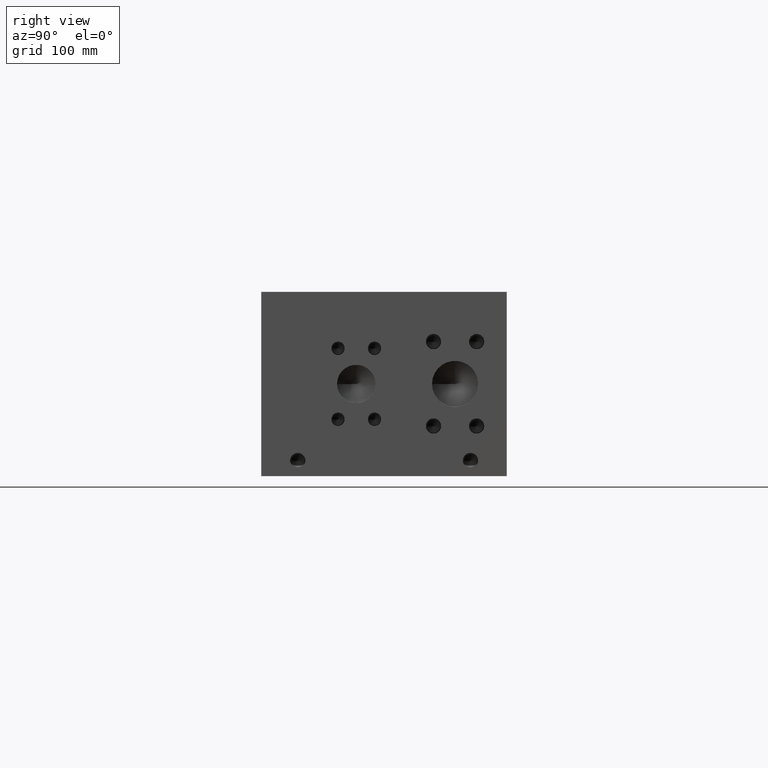
[diagram: clean part render]
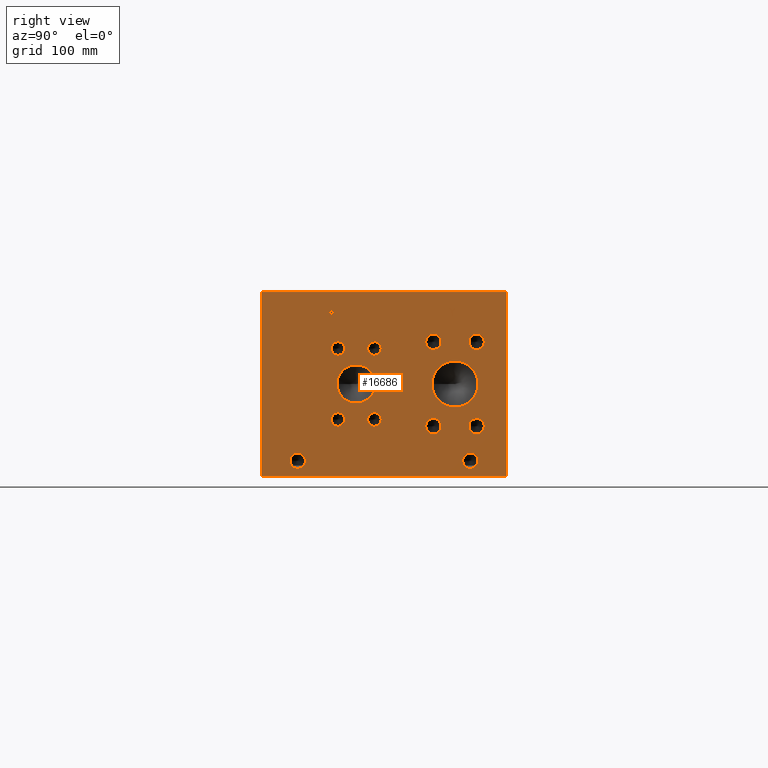
[diagram: same view with one face highlighted and labeled with its STEP entity id]
A machine part, right view. The second image highlights one B-rep face of the part: STEP entity #16686.
In plain terms, the highlighted planar face has unit normal (1, 0, 0).
Its self-contained STEP definition (entity closure, byte-faithful):
#355=CIRCLE('',#17505,6.35);
#356=CIRCLE('',#17506,6.35);
#357=CIRCLE('',#17507,6.35);
#358=CIRCLE('',#17508,6.35);
#359=CIRCLE('',#17509,15.875);
#360=CIRCLE('',#17510,15.875);
#361=CIRCLE('',#17511,5.5626);
#362=CIRCLE('',#17512,5.5626);
#363=CIRCLE('',#17513,5.5626);
#364=CIRCLE('',#17514,5.5626);
#365=CIRCLE('',#17515,5.5626);
#366=CIRCLE('',#17516,5.5626);
#367=CIRCLE('',#17517,5.5626);
#368=CIRCLE('',#17518,5.5626);
#369=CIRCLE('',#17519,19.05);
#370=CIRCLE('',#17520,19.05);
#371=CIRCLE('',#17521,6.35);
#372=CIRCLE('',#17522,6.35);
#373=CIRCLE('',#17523,6.35);
#374=CIRCLE('',#17524,6.35);
#375=CIRCLE('',#17525,6.35);
#376=CIRCLE('',#17526,6.35);
#377=CIRCLE('',#17527,6.35);
#378=CIRCLE('',#17528,6.35);
#986=FACE_BOUND('',#3058,.T.);
#987=FACE_BOUND('',#3059,.T.);
#988=FACE_BOUND('',#3060,.T.);
#989=FACE_BOUND('',#3061,.T.);
#990=FACE_BOUND('',#3062,.T.);
#991=FACE_BOUND('',#3063,.T.);
#992=FACE_BOUND('',#3064,.T.);
#993=FACE_BOUND('',#3065,.T.);
#994=FACE_BOUND('',#3066,.T.);
#995=FACE_BOUND('',#3067,.T.);
#996=FACE_BOUND('',#3068,.T.);
#997=FACE_BOUND('',#3069,.T.);
#998=FACE_BOUND('',#3070,.T.);
#999=FACE_BOUND('',#3071,.T.);
#1482=PLANE('',#17504);
#2087=FACE_OUTER_BOUND('',#3057,.T.);
#3057=EDGE_LOOP('',(#13587,#13588,#13589,#13590));
#3058=EDGE_LOOP('',(#13591,#13592,#13593,#13594,#13595,#13596,#13597,#13598,
#13599));
#3059=EDGE_LOOP('',(#13600,#13601));
#3060=EDGE_LOOP('',(#13602,#13603));
#3061=EDGE_LOOP('',(#13604,#13605));
#3062=EDGE_LOOP('',(#13606,#13607));
#3063=EDGE_LOOP('',(#13608,#13609));
#3064=EDGE_LOOP('',(#13610,#13611));
#3065=EDGE_LOOP('',(#13612,#13613));
#3066=EDGE_LOOP('',(#13614,#13615));
#3067=EDGE_LOOP('',(#13616,#13617));
#3068=EDGE_LOOP('',(#13618,#13619));
#3069=EDGE_LOOP('',(#13620,#13621));
#3070=EDGE_LOOP('',(#13622,#13623));
#3071=EDGE_LOOP('',(#13624,#13625,#13626,#13627,#13628,#13629,#13630,#13631,
#13632));
#3616=LINE('',#22874,#5042);
#4596=LINE('',#27189,#6022);
#4600=LINE('',#27197,#6026);
#4603=LINE('',#27203,#6029);
#4606=LINE('',#27209,#6032);
#4609=LINE('',#27215,#6035);
#4612=LINE('',#27221,#6038);
#4615=LINE('',#27227,#6041);
#4618=LINE('',#27233,#6044);
#4621=LINE('',#27238,#6047);
#4639=LINE('',#27378,#6065);
#4642=LINE('',#27384,#6068);
#4645=LINE('',#27390,#6071);
#4648=LINE('',#27396,#6074);
#4651=LINE('',#27402,#6077);
#4655=LINE('',#27444,#6081);
#4656=LINE('',#27446,#6082);
#4657=LINE('',#27447,#6083);
#5042=VECTOR('',#18494,10.);
#6022=VECTOR('',#20266,10.);
#6026=VECTOR('',#20272,10.);
#6029=VECTOR('',#20277,10.);
#6032=VECTOR('',#20282,10.);
#6035=VECTOR('',#20287,10.);
#6038=VECTOR('',#20292,10.);
#6041=VECTOR('',#20297,10.);
#6044=VECTOR('',#20302,10.);
#6047=VECTOR('',#20307,10.);
#6065=VECTOR('',#20335,10.);
#6068=VECTOR('',#20340,10.);
#6071=VECTOR('',#20345,10.);
#6074=VECTOR('',#20350,10.);
#6077=VECTOR('',#20355,10.);
#6081=VECTOR('',#20363,10.);
#6082=VECTOR('',#20364,10.);
#6083=VECTOR('',#20365,10.);
#6715=B_SPLINE_CURVE_WITH_KNOTS('',2,(#27345,#27346,#27347,#27348),
 .UNSPECIFIED.,.F.,.F.,(3,1,3),(0.,1.,2.),.UNSPECIFIED.);
#6717=B_SPLINE_CURVE_WITH_KNOTS('',2,(#27366,#27367,#27368,#27369),
 .UNSPECIFIED.,.F.,.F.,(3,1,3),(0.,1.,2.),.UNSPECIFIED.);
#6719=B_SPLINE_CURVE_WITH_KNOTS('',2,(#27415,#27416,#27417,#27418),
 .UNSPECIFIED.,.F.,.F.,(3,1,3),(0.,1.,2.),.UNSPECIFIED.);
#6721=B_SPLINE_CURVE_WITH_KNOTS('',2,(#27433,#27434,#27435,#27436),
 .UNSPECIFIED.,.F.,.F.,(3,1,3),(0.,1.,2.),.UNSPECIFIED.);
#6788=VERTEX_POINT('',#22871);
#6789=VERTEX_POINT('',#22873);
#7679=VERTEX_POINT('',#27187);
#7680=VERTEX_POINT('',#27188);
#7683=VERTEX_POINT('',#27196);
#7685=VERTEX_POINT('',#27202);
#7687=VERTEX_POINT('',#27208);
#7689=VERTEX_POINT('',#27214);
#7691=VERTEX_POINT('',#27220);
#7693=VERTEX_POINT('',#27226);
#7695=VERTEX_POINT('',#27232);
#7711=VERTEX_POINT('',#27343);
#7712=VERTEX_POINT('',#27344);
#7715=VERTEX_POINT('',#27365);
#7717=VERTEX_POINT('',#27377);
#7719=VERTEX_POINT('',#27383);
#7721=VERTEX_POINT('',#27389);
#7723=VERTEX_POINT('',#27395);
#7725=VERTEX_POINT('',#27401);
#7727=VERTEX_POINT('',#27414);
#7729=VERTEX_POINT('',#27443);
#7730=VERTEX_POINT('',#27445);
#7731=VERTEX_POINT('',#27448);
#7732=VERTEX_POINT('',#27449);
#7733=VERTEX_POINT('',#27452);
#7734=VERTEX_POINT('',#27453);
#7735=VERTEX_POINT('',#27456);
#7736=VERTEX_POINT('',#27457);
#7737=VERTEX_POINT('',#27460);
#7738=VERTEX_POINT('',#27461);
#7739=VERTEX_POINT('',#27464);
#7740=VERTEX_POINT('',#27465);
#7741=VERTEX_POINT('',#27468);
#7742=VERTEX_POINT('',#27469);
#7743=VERTEX_POINT('',#27472);
#7744=VERTEX_POINT('',#27473);
#7745=VERTEX_POINT('',#27476);
#7746=VERTEX_POINT('',#27477);
#7747=VERTEX_POINT('',#27480);
#7748=VERTEX_POINT('',#27481);
#7749=VERTEX_POINT('',#27484);
#7750=VERTEX_POINT('',#27485);
#7751=VERTEX_POINT('',#27488);
#7752=VERTEX_POINT('',#27489);
#7753=VERTEX_POINT('',#27492);
#7754=VERTEX_POINT('',#27493);
#8501=EDGE_CURVE('',#6788,#6789,#3616,.T.);
#9803=EDGE_CURVE('',#7679,#7680,#4596,.T.);
#9807=EDGE_CURVE('',#7683,#7679,#4600,.T.);
#9810=EDGE_CURVE('',#7685,#7683,#4603,.T.);
#9813=EDGE_CURVE('',#7687,#7685,#4606,.T.);
#9816=EDGE_CURVE('',#7689,#7687,#4609,.T.);
#9819=EDGE_CURVE('',#7691,#7689,#4612,.T.);
#9822=EDGE_CURVE('',#7693,#7691,#4615,.T.);
#9825=EDGE_CURVE('',#7695,#7693,#4618,.T.);
#9828=EDGE_CURVE('',#7680,#7695,#4621,.T.);
#9851=EDGE_CURVE('',#7711,#7712,#6715,.T.);
#9855=EDGE_CURVE('',#7715,#7711,#6717,.T.);
#9858=EDGE_CURVE('',#7717,#7715,#4639,.T.);
#9861=EDGE_CURVE('',#7719,#7717,#4642,.T.);
#9864=EDGE_CURVE('',#7721,#7719,#4645,.T.);
#9867=EDGE_CURVE('',#7723,#7721,#4648,.T.);
#9870=EDGE_CURVE('',#7725,#7723,#4651,.T.);
#9873=EDGE_CURVE('',#7727,#7725,#6719,.T.);
#9876=EDGE_CURVE('',#7712,#7727,#6721,.T.);
#9878=EDGE_CURVE('',#6788,#7729,#4655,.T.);
#9879=EDGE_CURVE('',#7729,#7730,#4656,.T.);
#9880=EDGE_CURVE('',#6789,#7730,#4657,.T.);
#9881=EDGE_CURVE('',#7731,#7732,#355,.T.);
#9882=EDGE_CURVE('',#7732,#7731,#356,.T.);
#9883=EDGE_CURVE('',#7733,#7734,#357,.T.);
#9884=EDGE_CURVE('',#7734,#7733,#358,.T.);
#9885=EDGE_CURVE('',#7735,#7736,#359,.T.);
#9886=EDGE_CURVE('',#7736,#7735,#360,.T.);
#9887=EDGE_CURVE('',#7737,#7738,#361,.T.);
#9888=EDGE_CURVE('',#7738,#7737,#362,.T.);
#9889=EDGE_CURVE('',#7739,#7740,#363,.T.);
#9890=EDGE_CURVE('',#7740,#7739,#364,.T.);
#9891=EDGE_CURVE('',#7741,#7742,#365,.T.);
#9892=EDGE_CURVE('',#7742,#7741,#366,.T.);
#9893=EDGE_CURVE('',#7743,#7744,#367,.T.);
#9894=EDGE_CURVE('',#7744,#7743,#368,.T.);
#9895=EDGE_CURVE('',#7745,#7746,#369,.T.);
#9896=EDGE_CURVE('',#7746,#7745,#370,.T.);
#9897=EDGE_CURVE('',#7747,#7748,#371,.T.);
#9898=EDGE_CURVE('',#7748,#7747,#372,.T.);
#9899=EDGE_CURVE('',#7749,#7750,#373,.T.);
#9900=EDGE_CURVE('',#7750,#7749,#374,.T.);
#9901=EDGE_CURVE('',#7751,#7752,#375,.T.);
#9902=EDGE_CURVE('',#7752,#7751,#376,.T.);
#9903=EDGE_CURVE('',#7753,#7754,#377,.T.);
#9904=EDGE_CURVE('',#7754,#7753,#378,.T.);
#13587=ORIENTED_EDGE('',*,*,#9878,.T.);
#13588=ORIENTED_EDGE('',*,*,#9879,.T.);
#13589=ORIENTED_EDGE('',*,*,#9880,.F.);
#13590=ORIENTED_EDGE('',*,*,#8501,.F.);
#13591=ORIENTED_EDGE('',*,*,#9803,.T.);
#13592=ORIENTED_EDGE('',*,*,#9828,.T.);
#13593=ORIENTED_EDGE('',*,*,#9825,.T.);
#13594=ORIENTED_EDGE('',*,*,#9822,.T.);
#13595=ORIENTED_EDGE('',*,*,#9819,.T.);
#13596=ORIENTED_EDGE('',*,*,#9816,.T.);
#13597=ORIENTED_EDGE('',*,*,#9813,.T.);
#13598=ORIENTED_EDGE('',*,*,#9810,.T.);
#13599=ORIENTED_EDGE('',*,*,#9807,.T.);
#13600=ORIENTED_EDGE('',*,*,#9881,.T.);
#13601=ORIENTED_EDGE('',*,*,#9882,.T.);
#13602=ORIENTED_EDGE('',*,*,#9883,.T.);
#13603=ORIENTED_EDGE('',*,*,#9884,.T.);
#13604=ORIENTED_EDGE('',*,*,#9885,.T.);
#13605=ORIENTED_EDGE('',*,*,#9886,.T.);
#13606=ORIENTED_EDGE('',*,*,#9887,.T.);
#13607=ORIENTED_EDGE('',*,*,#9888,.T.);
#13608=ORIENTED_EDGE('',*,*,#9889,.T.);
#13609=ORIENTED_EDGE('',*,*,#9890,.T.);
#13610=ORIENTED_EDGE('',*,*,#9891,.T.);
#13611=ORIENTED_EDGE('',*,*,#9892,.T.);
#13612=ORIENTED_EDGE('',*,*,#9893,.T.);
#13613=ORIENTED_EDGE('',*,*,#9894,.T.);
#13614=ORIENTED_EDGE('',*,*,#9895,.T.);
#13615=ORIENTED_EDGE('',*,*,#9896,.T.);
#13616=ORIENTED_EDGE('',*,*,#9897,.T.);
#13617=ORIENTED_EDGE('',*,*,#9898,.T.);
#13618=ORIENTED_EDGE('',*,*,#9899,.T.);
#13619=ORIENTED_EDGE('',*,*,#9900,.T.);
#13620=ORIENTED_EDGE('',*,*,#9901,.T.);
#13621=ORIENTED_EDGE('',*,*,#9902,.T.);
#13622=ORIENTED_EDGE('',*,*,#9903,.T.);
#13623=ORIENTED_EDGE('',*,*,#9904,.T.);
#13624=ORIENTED_EDGE('',*,*,#9851,.T.);
#13625=ORIENTED_EDGE('',*,*,#9876,.T.);
#13626=ORIENTED_EDGE('',*,*,#9873,.T.);
#13627=ORIENTED_EDGE('',*,*,#9870,.T.);
#13628=ORIENTED_EDGE('',*,*,#9867,.T.);
#13629=ORIENTED_EDGE('',*,*,#9864,.T.);
#13630=ORIENTED_EDGE('',*,*,#9861,.T.);
#13631=ORIENTED_EDGE('',*,*,#9858,.T.);
#13632=ORIENTED_EDGE('',*,*,#9855,.T.);
#16686=ADVANCED_FACE('',(#2087,#986,#987,#988,#989,#990,#991,#992,#993,
#994,#995,#996,#997,#998,#999),#1482,.T.);
#17504=AXIS2_PLACEMENT_3D('',#27442,#20361,#20362);
#17505=AXIS2_PLACEMENT_3D('',#27450,#20366,#20367);
#17506=AXIS2_PLACEMENT_3D('',#27451,#20368,#20369);
#17507=AXIS2_PLACEMENT_3D('',#27454,#20370,#20371);
#17508=AXIS2_PLACEMENT_3D('',#27455,#20372,#20373);
#17509=AXIS2_PLACEMENT_3D('',#27458,#20374,#20375);
#17510=AXIS2_PLACEMENT_3D('',#27459,#20376,#20377);
#17511=AXIS2_PLACEMENT_3D('',#27462,#20378,#20379);
#17512=AXIS2_PLACEMENT_3D('',#27463,#20380,#20381);
#17513=AXIS2_PLACEMENT_3D('',#27466,#20382,#20383);
#17514=AXIS2_PLACEMENT_3D('',#27467,#20384,#20385);
#17515=AXIS2_PLACEMENT_3D('',#27470,#20386,#20387);
#17516=AXIS2_PLACEMENT_3D('',#27471,#20388,#20389);
#17517=AXIS2_PLACEMENT_3D('',#27474,#20390,#20391);
#17518=AXIS2_PLACEMENT_3D('',#27475,#20392,#20393);
#17519=AXIS2_PLACEMENT_3D('',#27478,#20394,#20395);
#17520=AXIS2_PLACEMENT_3D('',#27479,#20396,#20397);
#17521=AXIS2_PLACEMENT_3D('',#27482,#20398,#20399);
#17522=AXIS2_PLACEMENT_3D('',#27483,#20400,#20401);
#17523=AXIS2_PLACEMENT_3D('',#27486,#20402,#20403);
#17524=AXIS2_PLACEMENT_3D('',#27487,#20404,#20405);
#17525=AXIS2_PLACEMENT_3D('',#27490,#20406,#20407);
#17526=AXIS2_PLACEMENT_3D('',#27491,#20408,#20409);
#17527=AXIS2_PLACEMENT_3D('',#27494,#20410,#20411);
#17528=AXIS2_PLACEMENT_3D('',#27495,#20412,#20413);
#18494=DIRECTION('',(0.,0.,1.));
#20266=DIRECTION('',(0.,1.,0.));
#20272=DIRECTION('',(0.,0.512401080946015,0.858746256029892));
#20277=DIRECTION('',(0.,0.505352400516575,-0.862913061259438));
#20282=DIRECTION('',(0.,1.,0.));
#20287=DIRECTION('',(0.,-0.50909944989754,0.860707703064183));
#20292=DIRECTION('',(0.,0.,1.));
#20297=DIRECTION('',(0.,-1.,0.));
#20302=DIRECTION('',(0.,0.,-1.));
#20307=DIRECTION('',(0.,-0.518329263750967,-0.85518113539728));
#20335=DIRECTION('',(0.,1.,0.));
#20340=DIRECTION('',(0.,0.,1.));
#20345=DIRECTION('',(0.,-1.,0.));
#20350=DIRECTION('',(0.,0.,-1.));
#20355=DIRECTION('',(0.,-1.,0.));
#20361=DIRECTION('center_axis',(1.,0.,0.));
#20362=DIRECTION('ref_axis',(0.,1.,0.));
#20363=DIRECTION('',(0.,1.,0.));
#20364=DIRECTION('',(0.,0.,1.));
#20365=DIRECTION('',(0.,1.,0.));
#20366=DIRECTION('center_axis',(-1.,0.,0.));
#20367=DIRECTION('ref_axis',(0.,1.,0.));
#20368=DIRECTION('center_axis',(-1.,0.,0.));
#20369=DIRECTION('ref_axis',(0.,1.,0.));
#20370=DIRECTION('center_axis',(-1.,0.,0.));
#20371=DIRECTION('ref_axis',(0.,1.,0.));
#20372=DIRECTION('center_axis',(-1.,0.,0.));
#20373=DIRECTION('ref_axis',(0.,1.,0.));
#20374=DIRECTION('center_axis',(-1.,0.,0.));
#20375=DIRECTION('ref_axis',(0.,1.,0.));
#20376=DIRECTION('center_axis',(-1.,0.,0.));
#20377=DIRECTION('ref_axis',(0.,1.,0.));
#20378=DIRECTION('center_axis',(-1.,0.,0.));
#20379=DIRECTION('ref_axis',(0.,1.,0.));
#20380=DIRECTION('center_axis',(-1.,0.,0.));
#20381=DIRECTION('ref_axis',(0.,1.,0.));
#20382=DIRECTION('center_axis',(-1.,0.,0.));
#20383=DIRECTION('ref_axis',(0.,1.,0.));
#20384=DIRECTION('center_axis',(-1.,0.,0.));
#20385=DIRECTION('ref_axis',(0.,1.,0.));
#20386=DIRECTION('center_axis',(-1.,0.,0.));
#20387=DIRECTION('ref_axis',(0.,1.,0.));
#20388=DIRECTION('center_axis',(-1.,0.,0.));
#20389=DIRECTION('ref_axis',(0.,1.,0.));
#20390=DIRECTION('center_axis',(-1.,0.,0.));
#20391=DIRECTION('ref_axis',(0.,1.,0.));
#20392=DIRECTION('center_axis',(-1.,0.,0.));
#20393=DIRECTION('ref_axis',(0.,1.,0.));
#20394=DIRECTION('center_axis',(-1.,0.,0.));
#20395=DIRECTION('ref_axis',(0.,1.,0.));
#20396=DIRECTION('center_axis',(-1.,0.,0.));
#20397=DIRECTION('ref_axis',(0.,1.,0.));
#20398=DIRECTION('center_axis',(-1.,0.,0.));
#20399=DIRECTION('ref_axis',(0.,1.,0.));
#20400=DIRECTION('center_axis',(-1.,0.,0.));
#20401=DIRECTION('ref_axis',(0.,1.,0.));
#20402=DIRECTION('center_axis',(-1.,0.,0.));
#20403=DIRECTION('ref_axis',(0.,1.,0.));
#20404=DIRECTION('center_axis',(-1.,0.,0.));
#20405=DIRECTION('ref_axis',(0.,1.,0.));
#20406=DIRECTION('center_axis',(-1.,0.,0.));
#20407=DIRECTION('ref_axis',(0.,1.,0.));
#20408=DIRECTION('center_axis',(-1.,0.,0.));
#20409=DIRECTION('ref_axis',(0.,1.,0.));
#20410=DIRECTION('center_axis',(-1.,0.,0.));
#20411=DIRECTION('ref_axis',(0.,1.,0.));
#20412=DIRECTION('center_axis',(-1.,0.,0.));
#20413=DIRECTION('ref_axis',(0.,1.,0.));
#22871=CARTESIAN_POINT('',(549.275,0.,0.));
#22873=CARTESIAN_POINT('',(549.275,0.,152.4));
#22874=CARTESIAN_POINT('',(549.275,0.,0.));
#27187=CARTESIAN_POINT('',(549.275,159.76888162259,138.906249904633));
#27188=CARTESIAN_POINT('',(549.275,160.664262484345,138.906249904633));
#27189=CARTESIAN_POINT('',(549.275,79.8844408112948,138.906249904633));
#27196=CARTESIAN_POINT('',(549.275,158.101620707597,136.112044111913));
#27197=CARTESIAN_POINT('',(549.275,107.400264013921,51.1403259493642));
#27202=CARTESIAN_POINT('',(549.275,156.465234994734,138.906249904633));
#27203=CARTESIAN_POINT('',(549.275,166.77289154256,121.305440139004));
#27208=CARTESIAN_POINT('',(549.275,155.528687196806,138.906249904633));
#27209=CARTESIAN_POINT('',(549.275,77.7643435984029,138.906249904633));
#27214=CARTESIAN_POINT('',(549.275,157.674513744806,135.278413654417));
#27215=CARTESIAN_POINT('',(549.275,166.879837316547,119.715456536724));
#27220=CARTESIAN_POINT('',(549.275,157.674513744806,132.55625));
#27221=CARTESIAN_POINT('',(549.275,157.674513744806,66.278125));
#27226=CARTESIAN_POINT('',(549.275,158.518435936345,132.55625));
#27227=CARTESIAN_POINT('',(549.275,79.2592179681725,132.55625));
#27232=CARTESIAN_POINT('',(549.275,158.518435936345,135.365893393784));
#27233=CARTESIAN_POINT('',(549.275,158.518435936345,67.682946696892));
#27238=CARTESIAN_POINT('',(549.275,108.295644527767,52.504309487065));
#27343=CARTESIAN_POINT('',(549.275,59.4630672023594,136.922518143971));
#27344=CARTESIAN_POINT('',(549.275,60.219509654532,135.404487372604));
#27345=CARTESIAN_POINT('Ctrl Pts',(549.275,59.4630672023594,136.922518143971));
#27346=CARTESIAN_POINT('Ctrl Pts',(549.275,59.8181320268486,136.680662393956));
#27347=CARTESIAN_POINT('Ctrl Pts',(549.275,60.219509654532,135.934511675827));
#27348=CARTESIAN_POINT('Ctrl Pts',(549.275,60.219509654532,135.404487372604));
#27365=CARTESIAN_POINT('',(549.275,57.8009521543883,137.318749904633));
#27366=CARTESIAN_POINT('Ctrl Pts',(549.275,57.8009521543883,137.318749904633));
#27367=CARTESIAN_POINT('Ctrl Pts',(549.275,58.3669975267624,137.318749904633));
#27368=CARTESIAN_POINT('Ctrl Pts',(549.275,59.159461048086,137.133498691856));
#27369=CARTESIAN_POINT('Ctrl Pts',(549.275,59.4630672023594,136.922518143971));
#27377=CARTESIAN_POINT('',(549.275,56.2057333776978,137.318749904633));
#27378=CARTESIAN_POINT('',(549.275,28.1028666888489,137.318749904633));
#27383=CARTESIAN_POINT('',(549.275,56.2057333776978,130.96875));
#27384=CARTESIAN_POINT('',(549.275,56.2057333776978,65.484375));
#27389=CARTESIAN_POINT('',(549.275,57.0496555692373,130.96875));
#27390=CARTESIAN_POINT('',(549.275,28.5248277846186,130.96875));
#27395=CARTESIAN_POINT('',(549.275,57.0496555692373,133.335848829928));
#27396=CARTESIAN_POINT('',(549.275,57.0496555692373,66.6679244149639));
#27401=CARTESIAN_POINT('',(549.275,57.7649310852372,133.335848829928));
#27402=CARTESIAN_POINT('',(549.275,28.8824655426186,133.335848829928));
#27414=CARTESIAN_POINT('',(549.275,59.6637560162011,133.99451980869));
#27415=CARTESIAN_POINT('Ctrl Pts',(549.275,59.6637560162011,133.99451980869));
#27416=CARTESIAN_POINT('Ctrl Pts',(549.275,59.3344205268198,133.670330186331));
#27417=CARTESIAN_POINT('Ctrl Pts',(549.275,58.4441855320861,133.335848829928));
#27418=CARTESIAN_POINT('Ctrl Pts',(549.275,57.7649310852372,133.335848829928));
#27433=CARTESIAN_POINT('Ctrl Pts',(549.275,60.219509654532,135.404487372604));
#27434=CARTESIAN_POINT('Ctrl Pts',(549.275,60.219509654532,134.992818010877));
#27435=CARTESIAN_POINT('Ctrl Pts',(549.275,59.9261952343018,134.25181315977));
#27436=CARTESIAN_POINT('Ctrl Pts',(549.275,59.6637560162011,133.99451980869));
#27442=CARTESIAN_POINT('Origin',(549.275,0.,0.));
#27443=CARTESIAN_POINT('',(549.275,203.2,0.));
#27444=CARTESIAN_POINT('',(549.275,0.,0.));
#27445=CARTESIAN_POINT('',(549.275,203.2,152.4));
#27446=CARTESIAN_POINT('',(549.275,203.2,0.));
#27447=CARTESIAN_POINT('',(549.275,0.,152.4));
#27448=CARTESIAN_POINT('',(549.275,36.5252,12.7));
#27449=CARTESIAN_POINT('',(549.275,23.8252,12.7));
#27450=CARTESIAN_POINT('Origin',(549.275,30.1752,12.7));
#27451=CARTESIAN_POINT('Origin',(549.275,30.1752,12.7));
#27452=CARTESIAN_POINT('',(549.275,179.3748,12.7));
#27453=CARTESIAN_POINT('',(549.275,166.6748,12.7));
#27454=CARTESIAN_POINT('Origin',(549.275,173.0248,12.7));
#27455=CARTESIAN_POINT('Origin',(549.275,173.0248,12.7));
#27456=CARTESIAN_POINT('',(549.275,94.4626,76.2));
#27457=CARTESIAN_POINT('',(549.275,62.7126,76.2));
#27458=CARTESIAN_POINT('Origin',(549.275,78.5876,76.2));
#27459=CARTESIAN_POINT('Origin',(549.275,78.5876,76.2));
#27460=CARTESIAN_POINT('',(549.275,99.2378,105.5624));
#27461=CARTESIAN_POINT('',(549.275,88.1126,105.5624));
#27462=CARTESIAN_POINT('Origin',(549.275,93.6752,105.5624));
#27463=CARTESIAN_POINT('Origin',(549.275,93.6752,105.5624));
#27464=CARTESIAN_POINT('',(549.275,69.0626,46.8376));
#27465=CARTESIAN_POINT('',(549.275,57.9374,46.8376));
#27466=CARTESIAN_POINT('Origin',(549.275,63.5,46.8376));
#27467=CARTESIAN_POINT('Origin',(549.275,63.5,46.8376));
#27468=CARTESIAN_POINT('',(549.275,99.2378,46.8376));
#27469=CARTESIAN_POINT('',(549.275,88.1126,46.8376));
#27470=CARTESIAN_POINT('Origin',(549.275,93.6752,46.8376));
#27471=CARTESIAN_POINT('Origin',(549.275,93.6752,46.8376));
#27472=CARTESIAN_POINT('',(549.275,69.0626,105.5624));
#27473=CARTESIAN_POINT('',(549.275,57.9374,105.5624));
#27474=CARTESIAN_POINT('Origin',(549.275,63.5,105.5624));
#27475=CARTESIAN_POINT('Origin',(549.275,63.5,105.5624));
#27476=CARTESIAN_POINT('',(549.275,179.4002,76.2));
#27477=CARTESIAN_POINT('',(549.275,141.3002,76.2));
#27478=CARTESIAN_POINT('Origin',(549.275,160.3502,76.2));
#27479=CARTESIAN_POINT('Origin',(549.275,160.3502,76.2));
#27480=CARTESIAN_POINT('',(549.275,184.5564,41.275));
#27481=CARTESIAN_POINT('',(549.275,171.8564,41.275));
#27482=CARTESIAN_POINT('Origin',(549.275,178.2064,41.275));
#27483=CARTESIAN_POINT('Origin',(549.275,178.2064,41.275));
#27484=CARTESIAN_POINT('',(549.275,148.844,111.125));
#27485=CARTESIAN_POINT('',(549.275,136.144,111.125));
#27486=CARTESIAN_POINT('Origin',(549.275,142.494,111.125));
#27487=CARTESIAN_POINT('Origin',(549.275,142.494,111.125));
#27488=CARTESIAN_POINT('',(549.275,148.844,41.275));
#27489=CARTESIAN_POINT('',(549.275,136.144,41.275));
#27490=CARTESIAN_POINT('Origin',(549.275,142.494,41.275));
#27491=CARTESIAN_POINT('Origin',(549.275,142.494,41.275));
#27492=CARTESIAN_POINT('',(549.275,184.5564,111.125));
#27493=CARTESIAN_POINT('',(549.275,171.8564,111.125));
#27494=CARTESIAN_POINT('Origin',(549.275,178.2064,111.125));
#27495=CARTESIAN_POINT('Origin',(549.275,178.2064,111.125));